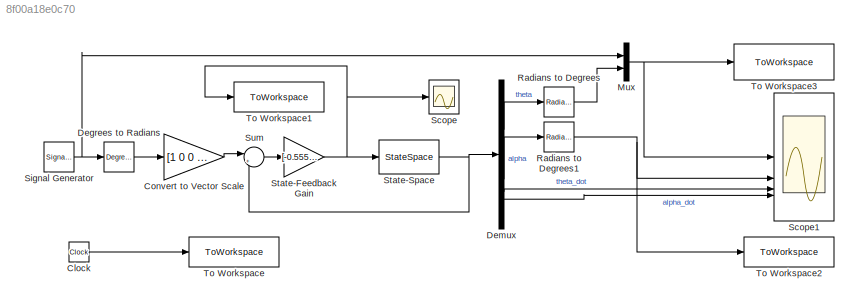
MODEL slx_8f00a18e0c70
KIND model
CONFIG AbsTol = auto
CONFIG EnableMultiTasking = off
CONFIG FixedStep = auto
CONFIG MaxStep = auto
CONFIG MinStep = auto
CONFIG RelTol = 1e-3
CONFIG SampleTimeConstraint = Unconstrained
CONFIG SolverName = VariableStepAuto
CONFIG StartTime = 0.0
CONFIG StopTime = 15
BLOCK [Clock] Clock
BLOCK [Gain] Convert to Vector Scale
  Gain = [1 0 0 0]
BLOCK [Reference] Degrees to Radians  REF=simulink_extras/Transformations/Degrees to
Radians
  SourceBlock = simulink_extras/Transformations/Degrees to\nRadians
  SourceType = DegreesToRadians
BLOCK [Demux] Demux
BLOCK [Mux] Mux
  DisplayOption = bar
  Inputs = 2
BLOCK [Reference] Radians to Degrees  REF=simulink_extras/Transformations/Radians
to Degrees
  SourceBlock = simulink_extras/Transformations/Radians\nto Degrees
  SourceType = RadiansToDegrees
BLOCK [Reference] Radians to Degrees1  REF=simulink_extras/Transformations/Radians
to Degrees
  SourceBlock = simulink_extras/Transformations/Radians\nto Degrees
  SourceType = RadiansToDegrees
BLOCK [Scope] Scope
  Floating = off
  NumInputPorts = 1
  ScopeSpecificationString = Simulink.scopes.TimeScopeBlockCfg('CurrentConfiguration', extmgr.ConfigurationSet(extmgr.Configuration('Core','General UI',true),extmgr.Configuration('Core','Source UI',true),extmgr.Configuration('Sources','WiredSimulink',true,'DataLoggingVariableName','ScopeData1'),extmgr.Configuration('Visuals','Time Domain',true,'SerializedDisplays',{struct('MinYLimReal','-0.36308','MaxYLimReal','0.35794','YLab...<+1585ch>
BLOCK [Scope] Scope1
  Floating = off
  NumInputPorts = 4
  ScopeSpecificationString = Simulink.scopes.TimeScopeBlockCfg('CurrentConfiguration', extmgr.ConfigurationSet(extmgr.Configuration('Core','General UI',true),extmgr.Configuration('Core','Source UI',true),extmgr.Configuration('Sources','WiredSimulink',true),extmgr.Configuration('Visuals','Time Domain',true,'SerializedDisplays',{struct('MinYLimReal','-25.00000','MaxYLimReal','25.00000','YLabelReal','','MinYLimMag','0.00000','Ma...<+1525ch>
BLOCK [SignalGenerator] Signal Generator
  Amplitude = 20
  Frequency = 0.1
  WaveForm = square
BLOCK [Gain] State-Feedback Gain 
  Gain = [-0.5558 2.9839 -0.3545 0.2418; 0 0 0 0; 0 0 0 0; 0 0 0 0]
  Multiplication = Matrix(K*u)
BLOCK [StateSpace] State-Space
  A = Acl
  B = [0 0 0 0; 0 0 0 0; g 0 0 0; h 0 0 0]
  C = [1 0 0 0; 0 1 0 0; 0 0 0 0; 0 0 0 0]
  D = [0 0 0 0; 0 0 0 0; 0 0 0 0; 0 0 0 0]
  InitialCondition = 0
BLOCK [Sum] Sum
  Inputs = |+-
BLOCK [ToWorkspace] To Workspace
  FixptAsFi = on
  MaxDataPoints = inf
  SampleTime = -1
  VariableName = time
BLOCK [ToWorkspace] To Workspace1
  FixptAsFi = on
  MaxDataPoints = inf
  SampleTime = -1
  VariableName = control_signal
BLOCK [ToWorkspace] To Workspace2
  FixptAsFi = on
  MaxDataPoints = inf
  SampleTime = -1
  VariableName = alpha
BLOCK [ToWorkspace] To Workspace3
  FixptAsFi = on
  MaxDataPoints = inf
  SampleTime = -1
  VariableName = input_Output
LINE Clock:1 -> To Workspace:1
LINE Convert to Vector Scale:1 -> Sum:1
LINE Degrees to Radians:1 -> Convert to Vector Scale:1
LINE Demux:1 -> Radians to Degrees:1
LINE Demux:2 -> Radians to Degrees1:1
LINE Demux:3 -> Scope1:3
LINE Demux:4 -> Scope1:4
NET Mux:1 -> Scope1:1, To Workspace3:1
NET Radians to Degrees1:1 -> Scope1:2, To Workspace2:1
LINE Radians to Degrees:1 -> Mux:2
NET Signal Generator:1 -> Degrees to Radians:1, Mux:1
NET State-Feedback Gain :1 -> Scope:1, State-Space:1, To Workspace1:1
NET State-Space:1 -> Demux:1, Sum:2
LINE Sum:1 -> State-Feedback Gain :1
note: NET lines group one-source signal fan-out (src -> all destinations, sorted); 1:1 wires keep LINE
